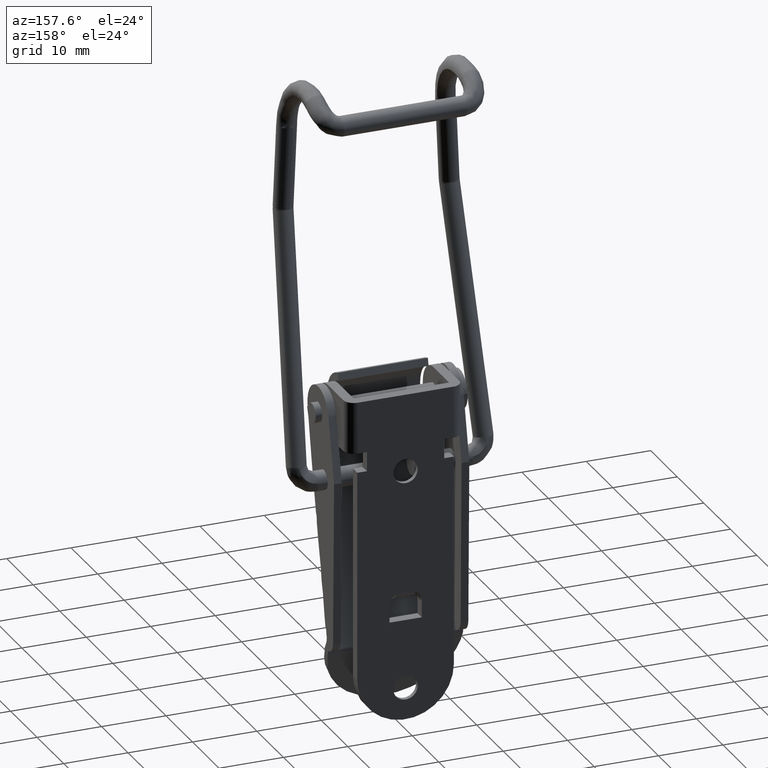
[diagram: clean part render]
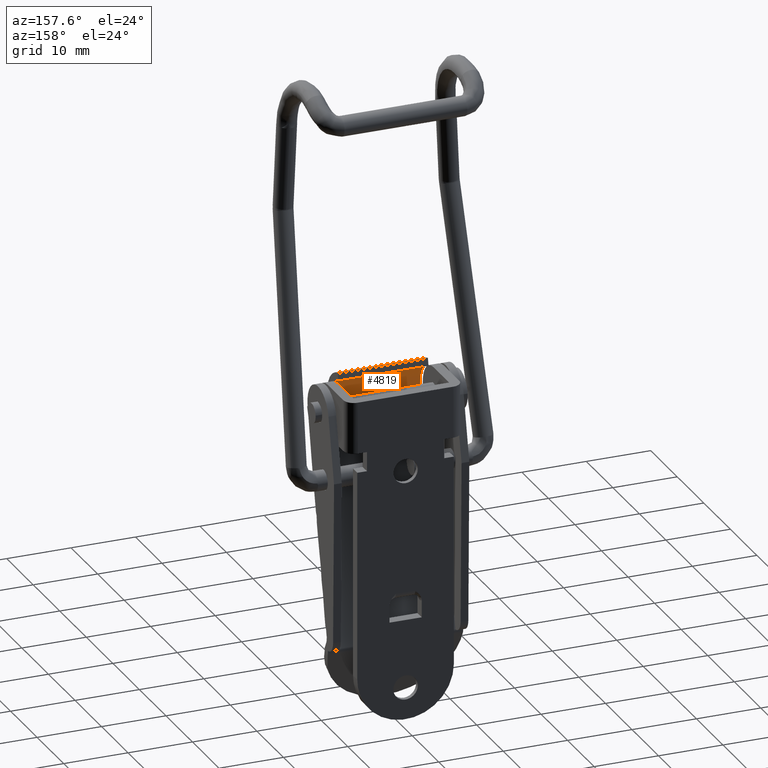
[diagram: same view with one face highlighted and labeled with its STEP entity id]
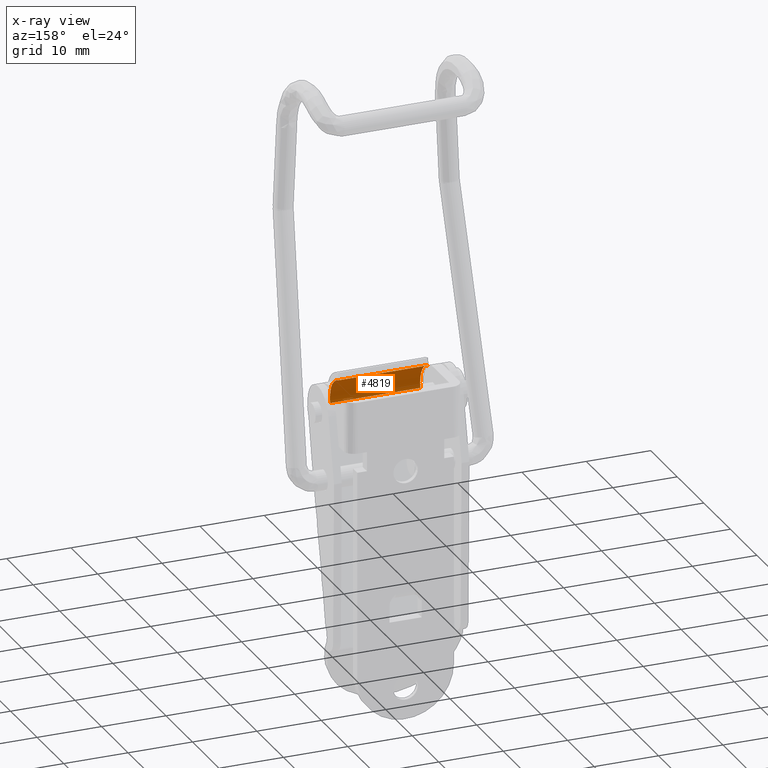
[diagram: x-ray of the same camera — body ghosted, the highlighted face saturated]
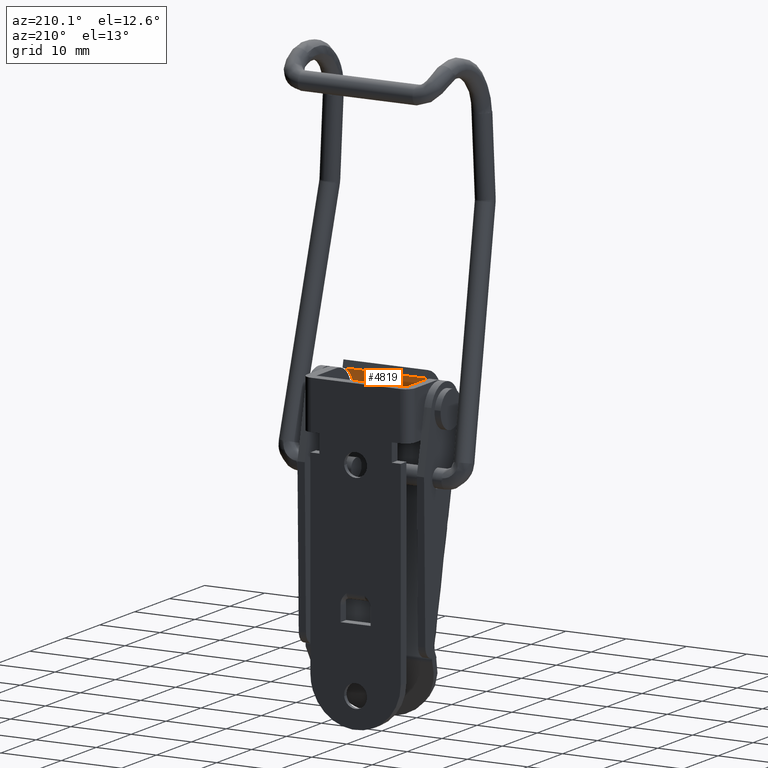
[diagram: same view with one face highlighted and labeled with its STEP entity id]
A machine part, auxiliary view. The second image highlights one B-rep face of the part: STEP entity #4819.
The next image is the same camera in x-ray: the body ghosted, the highlighted face saturated — about 4% of this face is hidden behind the body in this view.
A second angle (auxiliary view) of the same face is appended — the face is thin or edge-on in the first view.
In plain terms, the highlighted face is a freeform B-spline surface patch.
Its self-contained STEP definition (entity closure, byte-faithful):
#4693=CARTESIAN_POINT('',(-7.0,-0.843224078607380,3.910111654832470));
#4694=VERTEX_POINT('',#4693);
#4700=CARTESIAN_POINT('',(-7.0,-3.910111665725710,-0.843224078416824));
#4701=VERTEX_POINT('',#4700);
#4702=CARTESIAN_POINT('',(-7.0,-0.843224078607380,3.910111654832471));
#4703=CARTESIAN_POINT('',(-7.0,-4.753335731013006,3.066887576748446));
#4704=CARTESIAN_POINT('',(-7.0,-3.910111665725710,-0.843224078416824));
#4712=(BOUNDED_CURVE()B_SPLINE_CURVE(2,(#4702,#4703,#4704),.UNSPECIFIED.,.F.,.U.)CURVE()GEOMETRIC_REPRESENTATION_ITEM()QUASI_UNIFORM_CURVE()RATIONAL_B_SPLINE_CURVE((1.0,0.707106781405984,1.0))REPRESENTATION_ITEM(''));
#4713=EDGE_CURVE('',#4694,#4701,#4712,.T.);
#4745=CARTESIAN_POINT('',(7.0,-3.910111654832475,-0.843224078607379));
#4746=VERTEX_POINT('',#4745);
#4752=CARTESIAN_POINT('',(7.0,-0.843224078607380,3.910111654832470));
#4753=VERTEX_POINT('',#4752);
#4754=CARTESIAN_POINT('',(7.0,-0.843224078607380,3.910111654832471));
#4755=CARTESIAN_POINT('',(7.0,-4.753335733439848,3.066887576225092));
#4756=CARTESIAN_POINT('',(7.0,-3.910111654832473,-0.843224078607377));
#4764=(BOUNDED_CURVE()B_SPLINE_CURVE(2,(#4754,#4755,#4756),.UNSPECIFIED.,.F.,.U.)CURVE()GEOMETRIC_REPRESENTATION_ITEM()QUASI_UNIFORM_CURVE()RATIONAL_B_SPLINE_CURVE((1.0,0.707106781186548,1.0))REPRESENTATION_ITEM(''));
#4765=EDGE_CURVE('',#4753,#4746,#4764,.T.);
#4787=CARTESIAN_POINT('',(7.0,-0.843224078607380,3.910111654832470));
#4788=CARTESIAN_POINT('',(-7.0,-0.843224078607380,3.910111654832470));
#4789=QUASI_UNIFORM_CURVE('',1,(#4787,#4788),.UNSPECIFIED.,.F.,.U.);
#4790=EDGE_CURVE('',#4753,#4694,#4789,.T.);
#4795=CARTESIAN_POINT('',(7.350000000000001,-0.740580336109067,3.930844790343237));
#4796=CARTESIAN_POINT('',(-7.358750000000002,-0.740580336109067,3.930844790343237));
#4797=CARTESIAN_POINT('',(7.350000000000001,-5.070560440744919,3.115066429133309));
#4798=CARTESIAN_POINT('',(-7.358750000000003,-5.070560440744919,3.115066429133309));
#4799=CARTESIAN_POINT('',(7.350000000000002,-3.841136407950732,-1.116096364798016));
#4800=CARTESIAN_POINT('',(-7.358750000000002,-3.841136407950732,-1.116096364798016));
#4808=(BOUNDED_SURFACE()B_SPLINE_SURFACE(1,2,((#4795,#4797,#4799),(#4796,#4798,#4800)),.UNSPECIFIED.,.F.,.F.,.U.)B_SPLINE_SURFACE_WITH_KNOTS((2,2),(3,3),(0.0,14.708750000000000),(0.0,7.084569821797957),.UNSPECIFIED.)GEOMETRIC_REPRESENTATION_ITEM()RATIONAL_B_SPLINE_SURFACE(((1.0,0.670944202509902,0.996392689446193),(1.0,0.670944202509902,0.996392689446193)))REPRESENTATION_ITEM('')SURFACE());
#4809=ORIENTED_EDGE('',*,*,#4713,.F.);
#4810=ORIENTED_EDGE('',*,*,#4790,.F.);
#4811=ORIENTED_EDGE('',*,*,#4765,.T.);
#4812=CARTESIAN_POINT('',(7.0,-3.910111654832475,-0.843224078607379));
#4813=CARTESIAN_POINT('',(-7.0,-3.910111665725710,-0.843224078416824));
#4814=QUASI_UNIFORM_CURVE('',1,(#4812,#4813),.UNSPECIFIED.,.F.,.U.);
#4815=EDGE_CURVE('',#4746,#4701,#4814,.T.);
#4816=ORIENTED_EDGE('',*,*,#4815,.T.);
#4817=EDGE_LOOP('',(#4809,#4810,#4811,#4816));
#4818=FACE_OUTER_BOUND('',#4817,.T.);
#4819=ADVANCED_FACE('',(#4818),#4808,.F.);